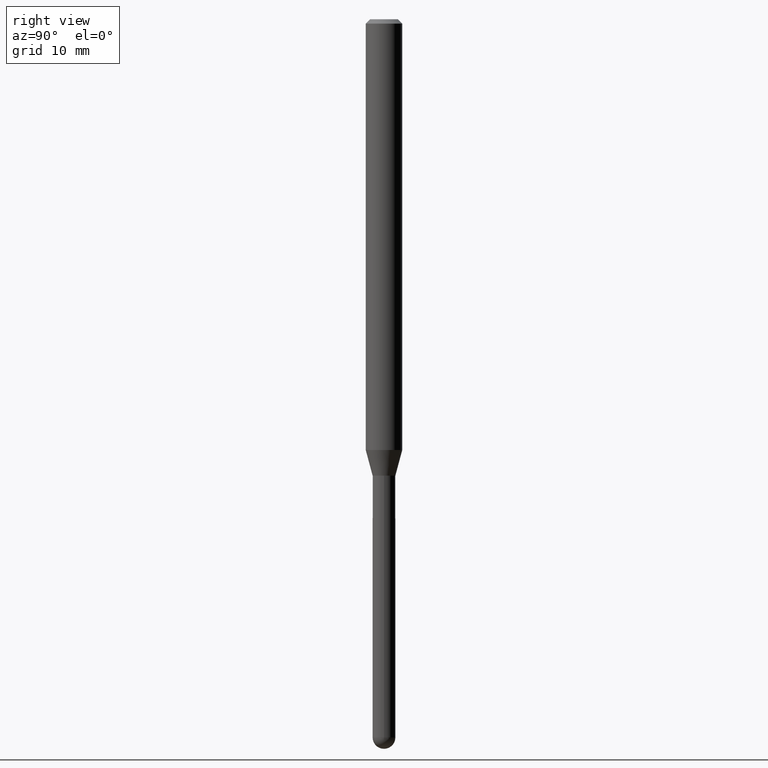
[diagram: clean part render]
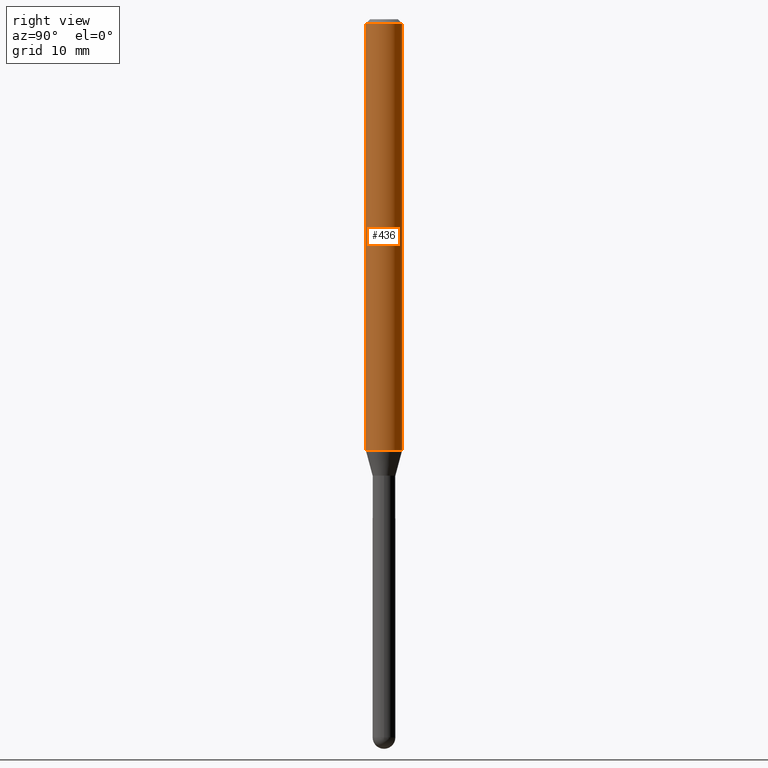
[diagram: same view with one face highlighted and labeled with its STEP entity id]
A machine part, right view. The second image highlights one B-rep face of the part: STEP entity #436.
In plain terms, the highlighted cylindrical surface (edge-blend (fillet) strip) has radius 1.5875 mm, axis along (-0, 0, 1).
Its self-contained STEP definition (entity closure, byte-faithful):
#14 = CARTESIAN_POINT ( 'NONE',  ( 3.610290673073439047E-29, -5.154387014095367711E-15, -1.476296806022132868 ) ) ;
#47 = VERTEX_POINT ( 'NONE', #354 ) ;
#64 = EDGE_CURVE ( 'NONE', #47, #129, #329, .T. ) ;
#69 = VERTEX_POINT ( 'NONE', #270 ) ;
#81 = VECTOR ( 'NONE', #296, 39.37007874015748143 ) ;
#91 = DIRECTION ( 'NONE',  ( -6.982962677686265922E-15, -1.000000000000000000, 3.483106191921935554E-15 ) ) ;
#107 = CARTESIAN_POINT ( 'NONE',  ( 0.000000000000000000, 0.000000000000000000, 0.000000000000000000 ) ) ;
#112 = EDGE_CURVE ( 'NONE', #130, #69, #366, .T. ) ;
#114 = LINE ( 'NONE', #507, #81 ) ;
#129 = VERTEX_POINT ( 'NONE', #313 ) ;
#130 = VERTEX_POINT ( 'NONE', #430 ) ;
#176 = LINE ( 'NONE', #355, #293 ) ;
#179 = AXIS2_PLACEMENT_3D ( 'NONE', #487, #442, #91 ) ;
#235 = DIRECTION ( 'NONE',  ( -6.982962677686265922E-15, -1.000000000000000000, 4.370956789862821150E-15 ) ) ;
#255 = DIRECTION ( 'NONE',  ( -2.445504629114067359E-29, 3.491430038370002359E-15, 1.000000000000000000 ) ) ;
#270 = CARTESIAN_POINT ( 'NONE',  ( 4.440892098500983121E-16, 0.06249999999999480971, -1.476296806022133312 ) ) ;
#272 = DIRECTION ( 'NONE',  ( -2.445504629114067359E-29, 3.491430038370002359E-15, 1.000000000000000000 ) ) ;
#274 = EDGE_LOOP ( 'NONE', ( #405, #512, #418, #298 ) ) ;
#293 = VECTOR ( 'NONE', #473, 39.37007874015748143 ) ;
#296 = DIRECTION ( 'NONE',  ( -2.445504629114067359E-29, 3.491430038370001964E-15, 1.000000000000000000 ) ) ;
#298 = ORIENTED_EDGE ( 'NONE', *, *, #389, .F. ) ;
#313 = CARTESIAN_POINT ( 'NONE',  ( 4.440892098500989038E-16, 0.06249999999999995143, -0.01500000000000022669 ) ) ;
#317 = EDGE_CURVE ( 'NONE', #69, #129, #176, .T. ) ;
#329 = CIRCLE ( 'NONE', #179, 0.06250000000000000000 ) ;
#332 = FACE_OUTER_BOUND ( 'NONE', #274, .T. ) ;
#354 = CARTESIAN_POINT ( 'NONE',  ( -4.364351673553912750E-16, -0.06250000000000005551, -0.01499999999999979128 ) ) ;
#355 = CARTESIAN_POINT ( 'NONE',  ( 4.440892098500625669E-16, 0.06250000000000000000, -2.182143773981251474E-16 ) ) ;
#366 = CIRCLE ( 'NONE', #466, 0.06250000000000000000 ) ;
#389 = EDGE_CURVE ( 'NONE', #130, #47, #114, .T. ) ;
#391 = AXIS2_PLACEMENT_3D ( 'NONE', #107, #255, #413 ) ;
#405 = ORIENTED_EDGE ( 'NONE', *, *, #112, .T. ) ;
#413 = DIRECTION ( 'NONE',  ( -6.982962677686265922E-15, -1.000000000000000000, 3.491430038370002359E-15 ) ) ;
#418 = ORIENTED_EDGE ( 'NONE', *, *, #64, .F. ) ;
#430 = CARTESIAN_POINT ( 'NONE',  ( -4.364351673553557762E-16, -0.06250000000000519029, -1.476296806022132646 ) ) ;
#436 = ADVANCED_FACE ( 'NONE', ( #332 ), #453, .T. ) ;
#442 = DIRECTION ( 'NONE',  ( -2.445504629114067359E-29, 3.491430038370002359E-15, 1.000000000000000000 ) ) ;
#453 = CYLINDRICAL_SURFACE ( 'NONE', #391, 0.06250000000000000000 ) ;
#466 = AXIS2_PLACEMENT_3D ( 'NONE', #14, #272, #235 ) ;
#473 = DIRECTION ( 'NONE',  ( -2.445504629114067359E-29, 3.491430038370001964E-15, 1.000000000000000000 ) ) ;
#487 = CARTESIAN_POINT ( 'NONE',  ( 3.668256943671103088E-31, -5.237145057555006792E-17, -0.01500000000000000812 ) ) ;
#507 = CARTESIAN_POINT ( 'NONE',  ( -4.364351673553916201E-16, -0.06250000000000000000, 2.182143773981251474E-16 ) ) ;
#512 = ORIENTED_EDGE ( 'NONE', *, *, #317, .T. ) ;